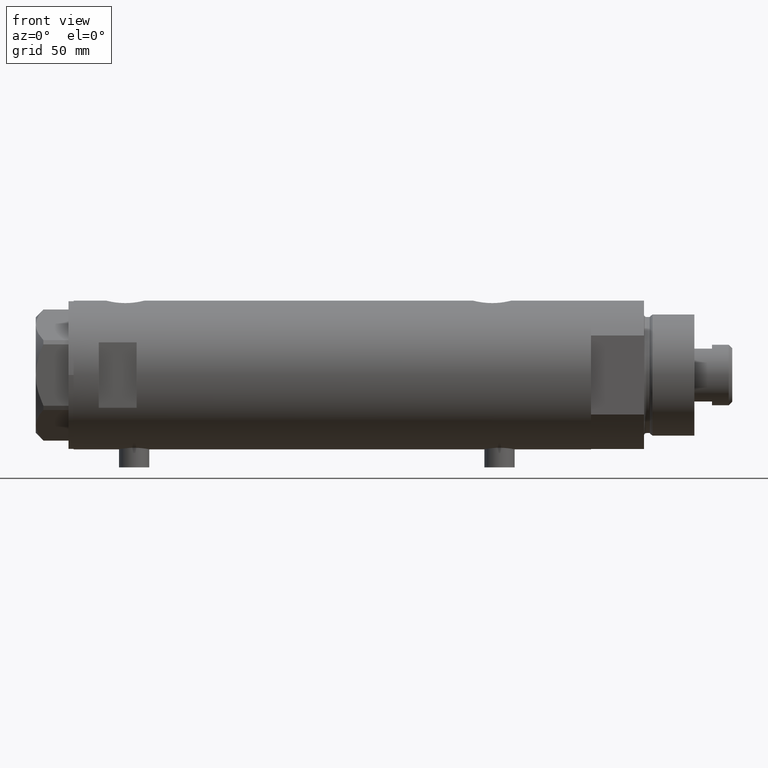
[diagram: clean part render]
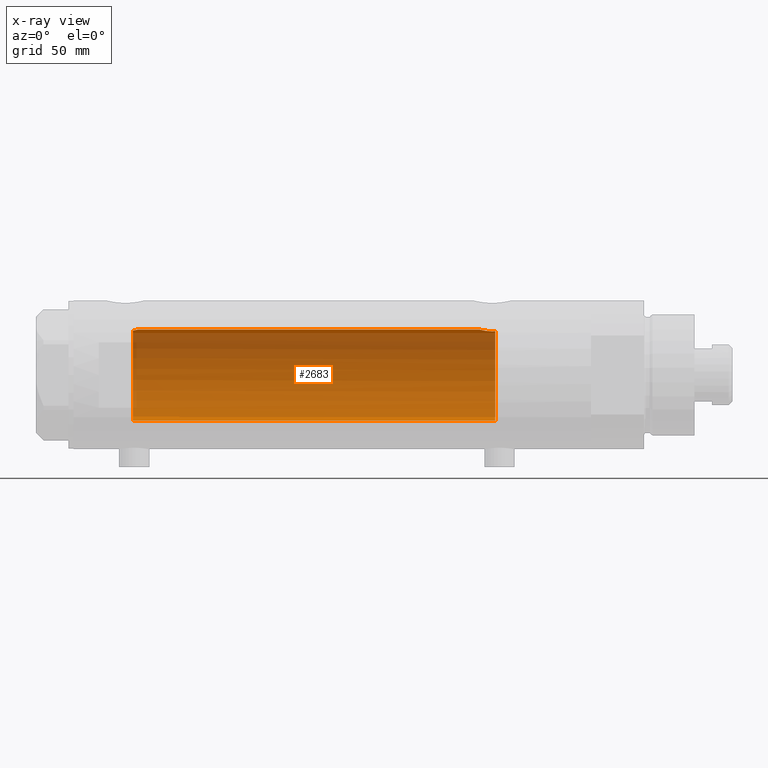
[diagram: x-ray — body ghosted, one internal face saturated and labeled with its STEP entity id]
A machine part, front view, then the same camera in x-ray: the body is ghosted and one INTERNAL B-rep face — a face not visible from any outside direction — is saturated and labeled: STEP entity #2683.
In plain terms, the highlighted cylindrical surface (partial cylindrical patch) has radius 18 mm, axis along (1, 0, -0).
Its self-contained STEP definition (entity closure, byte-faithful):
#24 = AXIS2_PLACEMENT_3D ( 'NONE', #689, #3472, #68 ) ;
#65 = CARTESIAN_POINT ( 'NONE',  ( 17.85293122918850628, 2.302201220737772669, 77.81031080804812916 ) ) ;
#68 = DIRECTION ( 'NONE',  ( -1.000000000000000000, 0.000000000000000000, 0.000000000000000000 ) ) ;
#182 = CARTESIAN_POINT ( 'NONE',  ( 18.00000000000000355, 0.1844036484100908535, -58.53499999999998238 ) ) ;
#282 = CARTESIAN_POINT ( 'NONE',  ( 18.00000000000000000, 5.958021437579254357E-16, -58.53499999999998238 ) ) ;
#307 = CARTESIAN_POINT ( 'NONE',  ( 17.76085061188611292, 2.927954048074874027, -59.51043039029092796 ) ) ;
#378 = VERTEX_POINT ( 'NONE', #658 ) ;
#380 = AXIS2_PLACEMENT_3D ( 'NONE', #1435, #1413, #3144 ) ;
#384 = CARTESIAN_POINT ( 'NONE',  ( 17.99999999999999645, 0.3728474842072371231, 77.23499999999998522 ) ) ;
#568 = VERTEX_POINT ( 'NONE', #3869 ) ;
#624 = DIRECTION ( 'NONE',  ( 1.000000000000000000, 0.000000000000000000, 0.000000000000000000 ) ) ;
#658 = CARTESIAN_POINT ( 'NONE',  ( 18.00000000000000000, 0.000000000000000000, 77.23499999999998522 ) ) ;
#689 = CARTESIAN_POINT ( 'NONE',  ( 0.000000000000000000, 0.000000000000000000, 102.5999999999999943 ) ) ;
#714 = ORIENTED_EDGE ( 'NONE', *, *, #2277, .T. ) ;
#834 = CARTESIAN_POINT ( 'NONE',  ( 17.98587882862718246, 0.7362002489460840460, -58.58746722239204985 ) ) ;
#876 = EDGE_CURVE ( 'NONE', #4048, #4125, #4019, .T. ) ;
#950 = EDGE_CURVE ( 'NONE', #378, #4313, #4083, .T. ) ;
#994 = CARTESIAN_POINT ( 'NONE',  ( 17.35631194664785681, 4.771042759406569189, -62.39667763205950024 ) ) ;
#1043 = CARTESIAN_POINT ( 'NONE',  ( 17.95540531162507136, 1.279032093992340968, 77.40250861430338603 ) ) ;
#1063 = ORIENTED_EDGE ( 'NONE', *, *, #3093, .F. ) ;
#1168 = CARTESIAN_POINT ( 'NONE',  ( 18.00000000000000000, 5.958021437579254357E-16, -58.53499999999998238 ) ) ;
#1206 = CARTESIAN_POINT ( 'NONE',  ( -18.00000000000000000, 0.000000000000000000, 79.10000000000000853 ) ) ;
#1306 = CARTESIAN_POINT ( 'NONE',  ( 17.34671983132638573, 4.806279138776327287, -64.24012329268312271 ) ) ;
#1323 = CARTESIAN_POINT ( 'NONE',  ( 17.83051055968252285, 2.469307448774139324, -59.20420614498792133 ) ) ;
#1346 = CARTESIAN_POINT ( 'NONE',  ( 17.78478726694684653, 2.779555353823087938, -59.40297143050465678 ) ) ;
#1354 = CARTESIAN_POINT ( 'NONE',  ( 18.00000000000000000, 2.204364238465235428E-15, 102.5999999999999943 ) ) ;
#1413 = DIRECTION ( 'NONE',  ( 0.000000000000000000, 0.000000000000000000, -1.000000000000000000 ) ) ;
#1432 = FACE_OUTER_BOUND ( 'NONE', #2423, .T. ) ;
#1435 = CARTESIAN_POINT ( 'NONE',  ( 0.000000000000000000, 0.000000000000000000, -64.59999999999999432 ) ) ;
#1449 = CARTESIAN_POINT ( 'NONE',  ( 17.94167814235965963, 1.458276351914876034, 77.45504464479716944 ) ) ;
#1508 = EDGE_CURVE ( 'NONE', #3319, #4048, #4188, .T. ) ;
#1559 = B_SPLINE_CURVE_WITH_KNOTS ( 'NONE', 3,
 ( #3070, #1745, #4189, #2772, #3833, #2469, #65, #2749, #4450, #1449, #1043, #2405, #384, #2094 ),
 .UNSPECIFIED., .F., .F.,
 ( 4, 2, 2, 2, 2, 2, 4 ),
 ( 0.02614985543880322602, 0.02725214354003938771, 0.02780328759065748417, 0.02835443164127558063, 0.02890557569189367709, 0.02945671974251177008, 0.03055900784374796994 ),
 .UNSPECIFIED. ) ;
#1562 = CARTESIAN_POINT ( 'NONE',  ( 17.91189082287940693, 1.809824880389075297, -58.86912370284668583 ) ) ;
#1614 = DIRECTION ( 'NONE',  ( -0.000000000000000000, -0.000000000000000000, -1.000000000000000000 ) ) ;
#1660 = B_SPLINE_CURVE_WITH_KNOTS ( 'NONE', 3,
 ( #1168, #182, #3919, #834, #3599, #2202, #1562, #4305, #1323, #1346, #307, #3398, #2005, #3079, #4390, #2697, #1670, #3693, #4074, #4093, #994, #2352, #3001, #3363, #2023, #1306, #1692 ),
 .UNSPECIFIED., .F., .F.,
 ( 4, 2, 2, 2, 2, 2, 2, 2, 2, 2, 1, 2, 2, 4 ),
 ( 0.01528157848519460030, 0.01583467956029640383, 0.01638778063539820737, 0.01749398278560182138, 0.01804708386070362838, 0.01860018493580543539, 0.01915328601090724239, 0.01970638708600904940, 0.02081258923621265994, 0.02136569031131446000, 0.02191879138641625313, 0.02247189246151805320, 0.02302499353661984632, 0.02413119568682348115 ),
 .UNSPECIFIED. ) ;
#1670 = CARTESIAN_POINT ( 'NONE',  ( 17.49030773641653269, 4.256160900234554845, -61.01469509681786718 ) ) ;
#1692 = CARTESIAN_POINT ( 'NONE',  ( 17.37157951943346035, 4.714681855650494136, -64.59999999999999432 ) ) ;
#1745 = CARTESIAN_POINT ( 'NONE',  ( 17.63704841537100876, 3.603891093161698755, 78.81145343596541863 ) ) ;
#1753 = CYLINDRICAL_SURFACE ( 'NONE', #24, 18.00000000000000000 ) ;
#2005 = CARTESIAN_POINT ( 'NONE',  ( 17.68656644271517209, 3.347025706529860756, -59.86453774950908979 ) ) ;
#2023 = CARTESIAN_POINT ( 'NONE',  ( 17.33262691996381477, 4.855935766715060886, -63.87488940890202826 ) ) ;
#2039 = DIRECTION ( 'NONE',  ( 0.000000000000000000, 0.000000000000000000, 1.000000000000000000 ) ) ;
#2074 = CARTESIAN_POINT ( 'NONE',  ( 17.58783030962034033, 3.829911878881842480, 79.10000000000000853 ) ) ;
#2094 = CARTESIAN_POINT ( 'NONE',  ( 18.00000000000000000, 0.000000000000000000, 77.23499999999998522 ) ) ;
#2138 = CARTESIAN_POINT ( 'NONE',  ( -18.00000000000000000, 0.000000000000000000, -64.59999999999999432 ) ) ;
#2202 = CARTESIAN_POINT ( 'NONE',  ( 17.94405978035182869, 1.463580074031385347, -58.74553017623721729 ) ) ;
#2277 = EDGE_CURVE ( 'NONE', #4125, #568, #2320, .T. ) ;
#2290 = ORIENTED_EDGE ( 'NONE', *, *, #3691, .F. ) ;
#2317 = AXIS2_PLACEMENT_3D ( 'NONE', #4041, #2039, #624 ) ;
#2320 = CIRCLE ( 'NONE', #380, 18.00000000000000000 ) ;
#2352 = CARTESIAN_POINT ( 'NONE',  ( 17.34085862114804044, 4.826483754267692383, -62.76145238513610991 ) ) ;
#2377 = VECTOR ( 'NONE', #3085, 1000.000000000000000 ) ;
#2391 = ORIENTED_EDGE ( 'NONE', *, *, #1508, .T. ) ;
#2405 = CARTESIAN_POINT ( 'NONE',  ( 17.98843015915092280, 0.7391836159806570716, 77.27731130524776404 ) ) ;
#2423 = EDGE_LOOP ( 'NONE', ( #4156, #1063, #2391, #4251, #714, #2290 ) ) ;
#2469 = CARTESIAN_POINT ( 'NONE',  ( 17.83158514913444748, 2.461498934476316958, 77.89965995681278343 ) ) ;
#2683 = ADVANCED_FACE ( 'NONE', ( #1432 ), #1753, .F. ) ;
#2697 = CARTESIAN_POINT ( 'NONE',  ( 17.53642083926970585, 4.065376572064633542, -60.70260027543616133 ) ) ;
#2749 = CARTESIAN_POINT ( 'NONE',  ( 17.89217382667230183, 1.974183297225234002, 77.64981302266164676 ) ) ;
#2772 = CARTESIAN_POINT ( 'NONE',  ( 17.76196254920471773, 2.921230608637955584, 78.20535341986150968 ) ) ;
#3001 = CARTESIAN_POINT ( 'NONE',  ( 17.33118376015917050, 4.861110225087390546, -63.13112109378172931 ) ) ;
#3070 = CARTESIAN_POINT ( 'NONE',  ( 17.58783030962034033, 3.829911878881842480, 79.10000000000000853 ) ) ;
#3079 = CARTESIAN_POINT ( 'NONE',  ( 17.63589737371338373, 3.604488512479874007, -60.12742655266249869 ) ) ;
#3085 = DIRECTION ( 'NONE',  ( -0.000000000000000000, -0.000000000000000000, -1.000000000000000000 ) ) ;
#3093 = EDGE_CURVE ( 'NONE', #3319, #378, #1559, .T. ) ;
#3144 = DIRECTION ( 'NONE',  ( -1.000000000000000000, 0.000000000000000000, 0.000000000000000000 ) ) ;
#3319 = VERTEX_POINT ( 'NONE', #2074 ) ;
#3336 = VECTOR ( 'NONE', #1614, 1000.000000000000000 ) ;
#3363 = CARTESIAN_POINT ( 'NONE',  ( 17.32928165965088141, 4.867855194001447394, -63.31899018256648048 ) ) ;
#3398 = CARTESIAN_POINT ( 'NONE',  ( 17.71174132276681945, 3.211689381115077957, -59.74121359250869290 ) ) ;
#3472 = DIRECTION ( 'NONE',  ( -0.000000000000000000, -0.000000000000000000, -1.000000000000000000 ) ) ;
#3599 = CARTESIAN_POINT ( 'NONE',  ( 17.97733715731491344, 0.9209699998971196955, -58.61935966604425374 ) ) ;
#3691 = EDGE_CURVE ( 'NONE', #4313, #568, #1660, .T. ) ;
#3693 = CARTESIAN_POINT ( 'NONE',  ( 17.43128843254318028, 4.489613141718955092, -61.51700003713169451 ) ) ;
#3833 = CARTESIAN_POINT ( 'NONE',  ( 17.78617492856929161, 2.770629413254915185, 78.09682049650069757 ) ) ;
#3869 = CARTESIAN_POINT ( 'NONE',  ( 17.37157951943346035, 4.714681855650494136, -64.59999999999999432 ) ) ;
#3919 = CARTESIAN_POINT ( 'NONE',  ( 17.99716691696285764, 0.3685254503903822032, -58.54545042928658916 ) ) ;
#3971 = CARTESIAN_POINT ( 'NONE',  ( -18.00000000000000000, 0.000000000000000000, 102.5999999999999943 ) ) ;
#4019 = LINE ( 'NONE', #3971, #3336 ) ;
#4041 = CARTESIAN_POINT ( 'NONE',  ( 0.000000000000000000, 0.000000000000000000, 79.10000000000000853 ) ) ;
#4048 = VERTEX_POINT ( 'NONE', #1206 ) ;
#4074 = CARTESIAN_POINT ( 'NONE',  ( 17.41328271218090151, 4.558641711475907243, -61.69087254718660773 ) ) ;
#4083 = LINE ( 'NONE', #1354, #2377 ) ;
#4093 = CARTESIAN_POINT ( 'NONE',  ( 17.38237957915197285, 4.675094569549006707, -62.04138980228256628 ) ) ;
#4125 = VERTEX_POINT ( 'NONE', #2138 ) ;
#4156 = ORIENTED_EDGE ( 'NONE', *, *, #950, .F. ) ;
#4188 = CIRCLE ( 'NONE', #2317, 18.00000000000000000 ) ;
#4189 = CARTESIAN_POINT ( 'NONE',  ( 17.68814035493779002, 3.348626323852659681, 78.55183600219631046 ) ) ;
#4251 = ORIENTED_EDGE ( 'NONE', *, *, #876, .T. ) ;
#4305 = CARTESIAN_POINT ( 'NONE',  ( 17.85236636886078543, 2.306694554785104323, -59.11264586133006560 ) ) ;
#4313 = VERTEX_POINT ( 'NONE', #282 ) ;
#4390 = CARTESIAN_POINT ( 'NONE',  ( 17.61032289555864949, 3.726910670425183980, -60.26756985850230564 ) ) ;
#4450 = CARTESIAN_POINT ( 'NONE',  ( 17.91007218376326193, 1.805463612197664158, 77.57866376881658255 ) ) ;